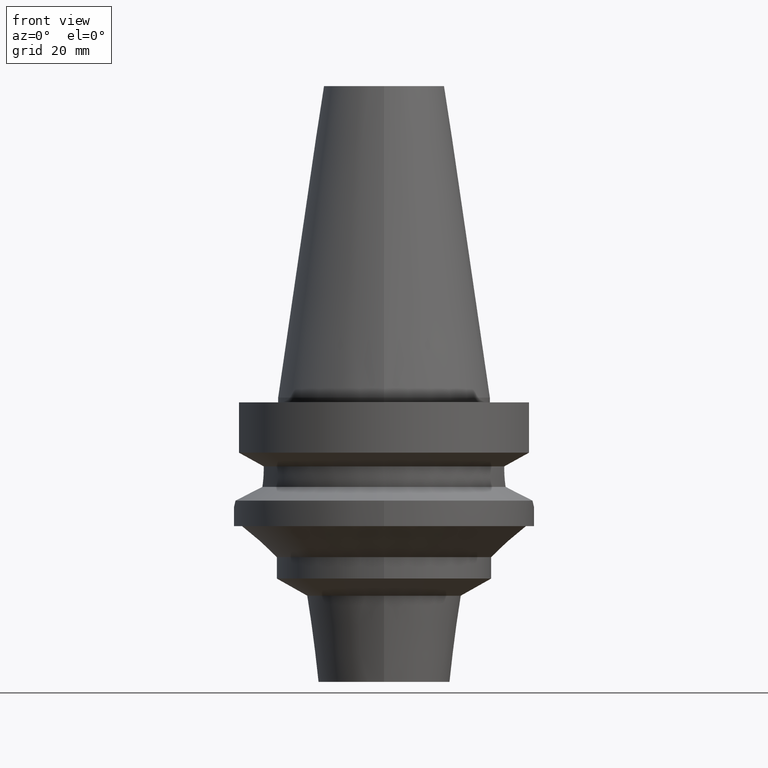
[diagram: clean part render]
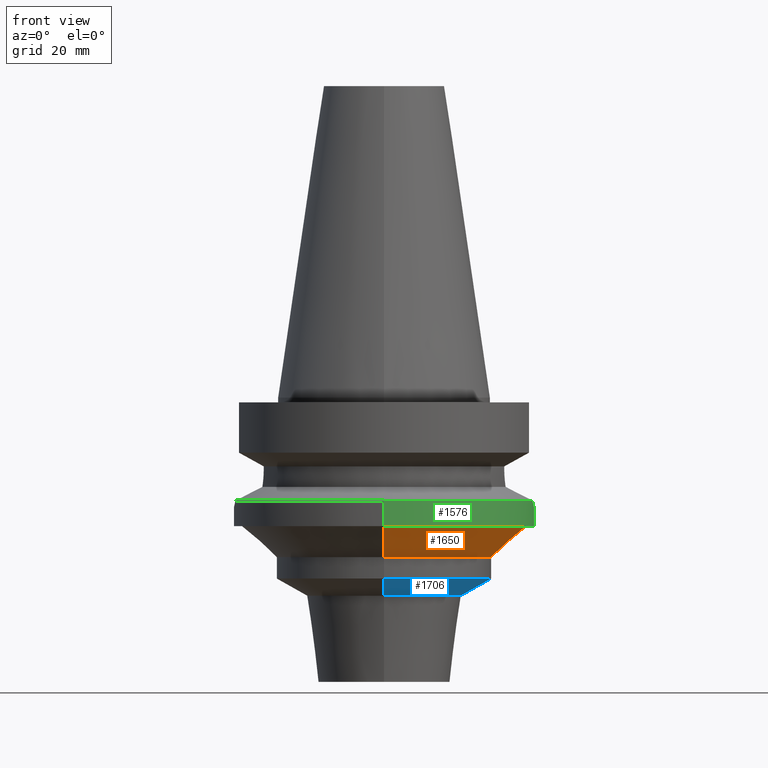
[diagram: same view with three faces highlighted in distinct colors, each labeled with its STEP entity id]
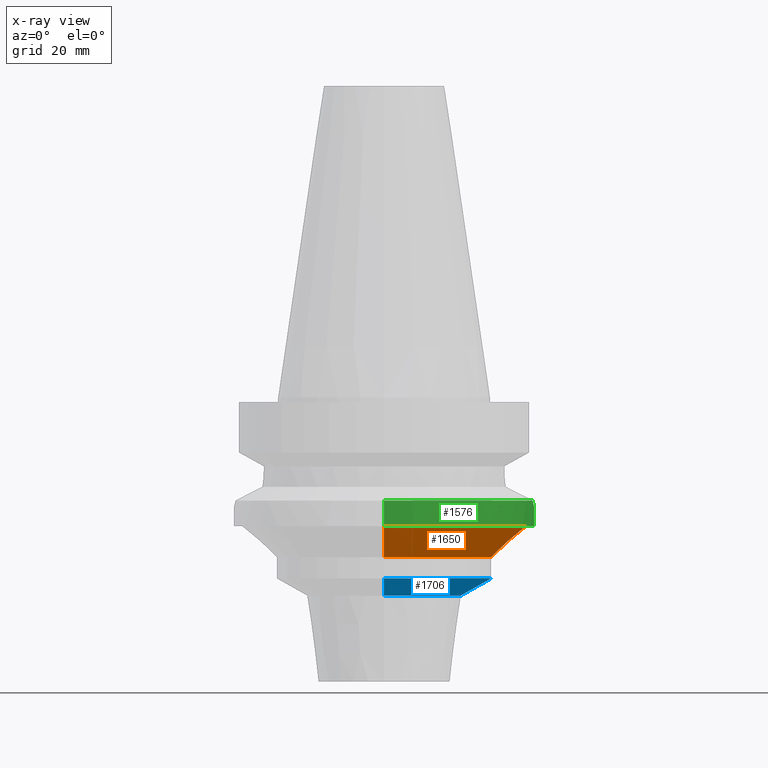
[diagram: x-ray of the same camera — body ghosted, the three highlighted faces saturated]
A machine part, front view with three faces highlighted in distinct colors.
The next image is the same camera in x-ray (body ghosted, the three faces saturated) — at least one of them is partly hidden behind the body in this view.
Their STEP definitions:

[orange] entity #1650 — the highlighted conical surface has half-angle 48.3 deg.
#655=CARTESIAN_POINT('',(0.E0,0.E0,-2.7E1));
#656=DIRECTION('',(0.E0,0.E0,-1.E0));
#657=DIRECTION('',(0.E0,1.E0,0.E0));
#658=AXIS2_PLACEMENT_3D('',#655,#656,#657);
#663=DIRECTION('',(0.E0,7.466381822854E-1,-6.652303546544E-1));
#664=VECTOR('',#663,9.771051417784E0);
#665=CARTESIAN_POINT('',(0.E0,-2.979544006959E1,-2.7E1));
#666=LINE('',#665,#664);
#678=DIRECTION('',(0.E0,-7.466381822854E-1,-6.652303546544E-1));
#679=VECTOR('',#678,9.771051417784E0);
#680=CARTESIAN_POINT('',(0.E0,2.979544006959E1,-2.7E1));
#681=LINE('',#680,#679);
#685=CARTESIAN_POINT('',(0.E0,0.E0,-3.35E1));
#686=DIRECTION('',(0.E0,0.E0,-1.E0));
#687=DIRECTION('',(0.E0,1.E0,0.E0));
#688=AXIS2_PLACEMENT_3D('',#685,#686,#687);
#1087=CARTESIAN_POINT('',(0.E0,2.25E1,-3.35E1));
#1088=VERTEX_POINT('',#1087);
#1089=CARTESIAN_POINT('',(0.E0,-2.25E1,-3.35E1));
#1090=VERTEX_POINT('',#1089);
#1091=CARTESIAN_POINT('',(0.E0,2.979544006959E1,-2.7E1));
#1092=VERTEX_POINT('',#1091);
#1093=CARTESIAN_POINT('',(0.E0,-2.979544006959E1,-2.7E1));
#1094=VERTEX_POINT('',#1093);
#1638=CARTESIAN_POINT('',(0.E0,0.E0,-3.025E1));
#1639=DIRECTION('',(0.E0,0.E0,1.E0));
#1640=DIRECTION('',(0.E0,1.E0,0.E0));
#1641=AXIS2_PLACEMENT_3D('',#1638,#1639,#1640);
#1642=CONICAL_SURFACE('',#1641,2.614772003480E1,4.83E1);
#1643=ORIENTED_EDGE('',*,*,#1628,.T.);
#1645=ORIENTED_EDGE('',*,*,#1644,.T.);
#1646=ORIENTED_EDGE('',*,*,#1631,.F.);
#1647=ORIENTED_EDGE('',*,*,#1618,.F.);
#1648=EDGE_LOOP('',(#1643,#1645,#1646,#1647));
#1649=FACE_OUTER_BOUND('',#1648,.F.);
#659=CIRCLE('',#658,2.979544006959E1);
#689=CIRCLE('',#688,2.25E1);
#1618=EDGE_CURVE('',#1092,#1094,#659,.T.);
#1628=EDGE_CURVE('',#1092,#1088,#681,.T.);
#1631=EDGE_CURVE('',#1094,#1090,#666,.T.);
#1644=EDGE_CURVE('',#1088,#1090,#689,.T.);
#1650=ADVANCED_FACE('',(#1649),#1642,.T.);

[blue] entity #1706 — the highlighted conical surface has half-angle 60.15 deg.
#715=DIRECTION('',(0.E0,8.673314314076E-1,-4.977310399125E-1));
#716=VECTOR('',#715,7.225715068915E0);
#717=CARTESIAN_POINT('',(0.E0,-2.25E1,-3.800353732464E1));
#718=LINE('',#717,#716);
#730=DIRECTION('',(0.E0,-8.673314314076E-1,-4.977310399125E-1));
#731=VECTOR('',#730,7.225715068915E0);
#732=CARTESIAN_POINT('',(0.E0,2.25E1,-3.800353732464E1));
#733=LINE('',#732,#731);
#737=CARTESIAN_POINT('',(0.E0,0.E0,-3.800353732464E1));
#738=DIRECTION('',(0.E0,0.E0,1.E0));
#739=DIRECTION('',(0.E0,-1.E0,0.E0));
#740=AXIS2_PLACEMENT_3D('',#737,#738,#739);
#752=CARTESIAN_POINT('',(0.E0,0.E0,-4.16E1));
#753=DIRECTION('',(0.E0,0.E0,1.E0));
#754=DIRECTION('',(0.E0,-1.E0,0.E0));
#755=AXIS2_PLACEMENT_3D('',#752,#753,#754);
#1079=CARTESIAN_POINT('',(0.E0,1.623291020633E1,-4.16E1));
#1080=VERTEX_POINT('',#1079);
#1081=CARTESIAN_POINT('',(0.E0,-1.623291020633E1,-4.16E1));
#1082=VERTEX_POINT('',#1081);
#1083=CARTESIAN_POINT('',(0.E0,2.25E1,-3.800353732464E1));
#1084=VERTEX_POINT('',#1083);
#1085=CARTESIAN_POINT('',(0.E0,-2.25E1,-3.800353732464E1));
#1086=VERTEX_POINT('',#1085);
#1694=CARTESIAN_POINT('',(0.E0,0.E0,-3.980176866232E1));
#1695=DIRECTION('',(0.E0,0.E0,1.E0));
#1696=DIRECTION('',(0.E0,1.E0,0.E0));
#1697=AXIS2_PLACEMENT_3D('',#1694,#1695,#1696);
#1698=CONICAL_SURFACE('',#1697,1.936645510317E1,6.015E1);
#1699=ORIENTED_EDGE('',*,*,#1684,.T.);
#1701=ORIENTED_EDGE('',*,*,#1700,.F.);
#1702=ORIENTED_EDGE('',*,*,#1687,.F.);
#1703=ORIENTED_EDGE('',*,*,#1658,.T.);
#1704=EDGE_LOOP('',(#1699,#1701,#1702,#1703));
#1705=FACE_OUTER_BOUND('',#1704,.F.);
#741=CIRCLE('',#740,2.25E1);
#756=CIRCLE('',#755,1.623291020634E1);
#1658=EDGE_CURVE('',#1086,#1084,#741,.T.);
#1684=EDGE_CURVE('',#1084,#1080,#733,.T.);
#1687=EDGE_CURVE('',#1086,#1082,#718,.T.);
#1700=EDGE_CURVE('',#1082,#1080,#756,.T.);
#1706=ADVANCED_FACE('',(#1705),#1698,.T.);

[green] entity #1576 — the highlighted cylindrical surface (partial cylindrical patch) has radius 31.5 mm, axis along (0, 0, -1).
#498=CARTESIAN_POINT('',(0.E0,0.E0,-2.163449434733E1));
#499=DIRECTION('',(0.E0,0.E0,-1.E0));
#500=DIRECTION('',(9.898094849553E-1,-1.423979757319E-1,0.E0));
#501=AXIS2_PLACEMENT_3D('',#498,#499,#500);
#528=CARTESIAN_POINT('',(3.117899877609E1,-4.485536235554E0,-2.163449434733E1));
#529=CARTESIAN_POINT('',(3.124371305470E1,-4.035706759714E0,-2.193634611186E1));
#530=CARTESIAN_POINT('',(3.135878909500E1,-3.099889337931E0,-2.243573583976E1));
#531=CARTESIAN_POINT('',(3.147361129384E1,-1.570931419044E0,-2.289772358631E1));
#532=CARTESIAN_POINT('',(3.15E1,-5.301480102093E-1,-2.3E1));
#533=CARTESIAN_POINT('',(3.15E1,0.E0,-2.3E1));
#538=CARTESIAN_POINT('',(3.15E1,0.E0,-2.3E1));
#539=CARTESIAN_POINT('',(3.15E1,5.301023053711E-1,-2.3E1));
#540=CARTESIAN_POINT('',(3.147361568004E1,1.570825301201E0,-2.289774164993E1));
#541=CARTESIAN_POINT('',(3.135880148385E1,3.099771824808E0,-2.243578584210E1));
#542=CARTESIAN_POINT('',(3.124371950654E1,4.035661912956E0,-2.193637620565E1));
#543=CARTESIAN_POINT('',(3.117899877609E1,4.485536235554E0,-2.163449434733E1));
#548=DIRECTION('',(0.E0,1.099151708819E-13,-1.E0));
#549=VECTOR('',#548,5.365505652669E0);
#550=CARTESIAN_POINT('',(0.E0,3.15E1,-2.163449434733E1));
#551=LINE('',#550,#549);
#575=CARTESIAN_POINT('',(0.E0,0.E0,-2.163449434733E1));
#576=DIRECTION('',(0.E0,0.E0,-1.E0));
#577=DIRECTION('',(0.E0,1.E0,0.E0));
#578=AXIS2_PLACEMENT_3D('',#575,#576,#577);
#624=DIRECTION('',(0.E0,-1.105773104655E-13,-1.E0));
#625=VECTOR('',#624,5.365505652669E0);
#626=CARTESIAN_POINT('',(0.E0,-3.15E1,-2.163449434733E1));
#627=LINE('',#626,#625);
#631=CARTESIAN_POINT('',(0.E0,2.102167463076E-14,-2.7E1));
#632=DIRECTION('',(0.E0,0.E0,1.E0));
#633=DIRECTION('',(0.E0,-1.E0,0.E0));
#634=AXIS2_PLACEMENT_3D('',#631,#632,#633);
#1095=CARTESIAN_POINT('',(0.E0,-3.15E1,-2.7E1));
#1096=CARTESIAN_POINT('',(0.E0,3.15E1,-2.7E1));
#1097=VERTEX_POINT('',#1095);
#1098=VERTEX_POINT('',#1096);
#1099=VERTEX_POINT('',#538);
#1100=VERTEX_POINT('',#543);
#1101=VERTEX_POINT('',#528);
#1102=CARTESIAN_POINT('',(0.E0,3.15E1,-2.163449434733E1));
#1103=VERTEX_POINT('',#1102);
#1104=CARTESIAN_POINT('',(0.E0,-3.15E1,-2.163449434733E1));
#1105=VERTEX_POINT('',#1104);
#1558=CARTESIAN_POINT('',(0.E0,2.102167463076E-14,7.1655E1));
#1559=DIRECTION('',(0.E0,0.E0,-1.E0));
#1560=DIRECTION('',(0.E0,-1.E0,0.E0));
#1561=AXIS2_PLACEMENT_3D('',#1558,#1559,#1560);
#1562=CYLINDRICAL_SURFACE('',#1561,3.15E1);
#1563=ORIENTED_EDGE('',*,*,#1544,.T.);
#1564=ORIENTED_EDGE('',*,*,#1542,.T.);
#1566=ORIENTED_EDGE('',*,*,#1565,.F.);
#1568=ORIENTED_EDGE('',*,*,#1567,.T.);
#1570=ORIENTED_EDGE('',*,*,#1569,.F.);
#1572=ORIENTED_EDGE('',*,*,#1571,.F.);
#1573=ORIENTED_EDGE('',*,*,#1530,.F.);
#1574=EDGE_LOOP('',(#1563,#1564,#1566,#1568,#1570,#1572,#1573));
#1575=FACE_OUTER_BOUND('',#1574,.F.);
#502=CIRCLE('',#501,3.15E1);
#534=B_SPLINE_CURVE_WITH_KNOTS('',3,(#528,#529,#530,#531,#532,#533),
.UNSPECIFIED.,.F.,.F.,(4,1,1,4),(0.E0,3.333333333333E-1,6.666666666667E-1,1.E0),
.UNSPECIFIED.);
#544=B_SPLINE_CURVE_WITH_KNOTS('',3,(#538,#539,#540,#541,#542,#543),
.UNSPECIFIED.,.F.,.F.,(4,1,1,4),(0.E0,3.333333333333E-1,6.666666666667E-1,1.E0),
.UNSPECIFIED.);
#579=CIRCLE('',#578,3.15E1);
#635=CIRCLE('',#634,3.15E1);
#1530=EDGE_CURVE('',#1101,#1105,#502,.T.);
#1542=EDGE_CURVE('',#1099,#1100,#544,.T.);
#1544=EDGE_CURVE('',#1101,#1099,#534,.T.);
#1565=EDGE_CURVE('',#1103,#1100,#579,.T.);
#1567=EDGE_CURVE('',#1103,#1098,#551,.T.);
#1569=EDGE_CURVE('',#1097,#1098,#635,.T.);
#1571=EDGE_CURVE('',#1105,#1097,#627,.T.);
#1576=ADVANCED_FACE('',(#1575),#1562,.T.);